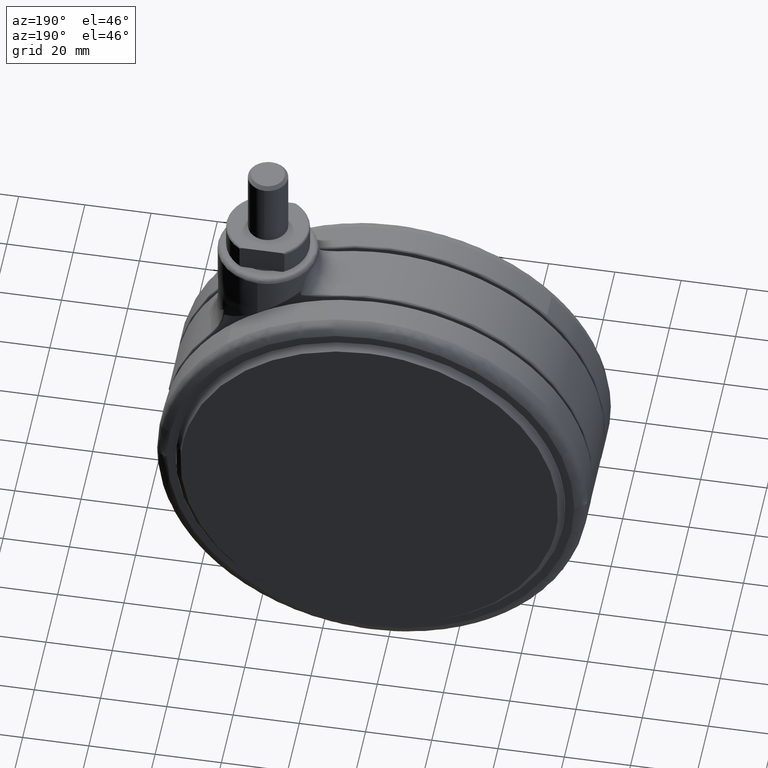
[diagram: clean part render]
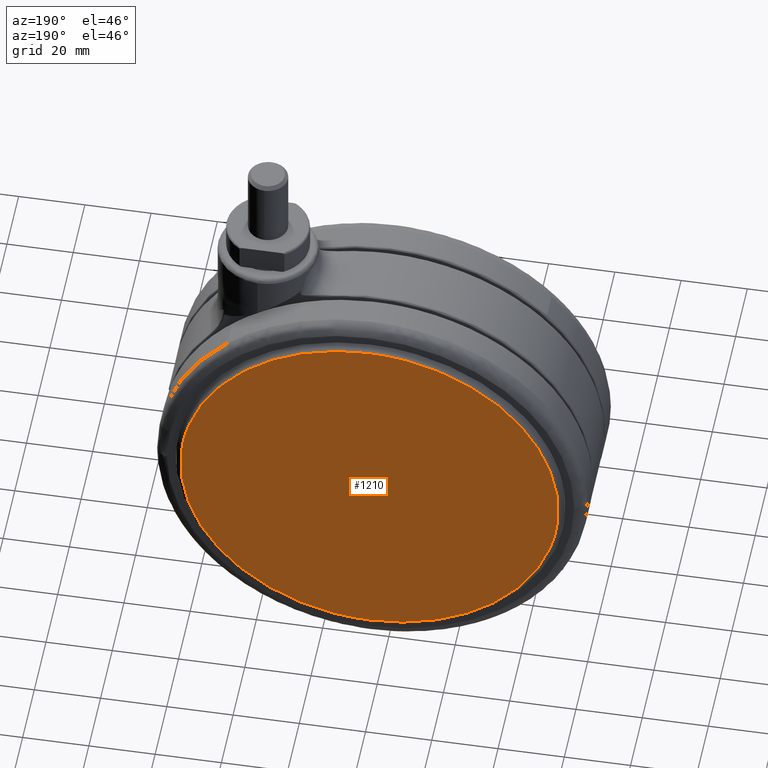
[diagram: same view with one face highlighted and labeled with its STEP entity id]
A machine part, auxiliary view. The second image highlights one B-rep face of the part: STEP entity #1210.
In plain terms, the highlighted face is a freeform B-spline surface patch.
Its self-contained STEP definition (entity closure, byte-faithful):
#1139=CARTESIAN_POINT('',(27.681095279403252,25.0,-8.805700220954233));
#1140=CARTESIAN_POINT('',(27.681095279403252,25.0,-134.194302836764110));
#1141=CARTESIAN_POINT('',(-97.681093240973070,25.0,-8.805700220954234));
#1142=CARTESIAN_POINT('',(-97.681093240973070,25.0,-134.194302836764110));
#1143=B_SPLINE_SURFACE_WITH_KNOTS('',1,1,((#1139,#1141),(#1140,#1142)),.UNSPECIFIED.,.F.,.F.,.U.,(2,2),(2,2),(0.0,125.388602615809900),(0.0,125.362188520376290),.UNSPECIFIED.);
#1144=CARTESIAN_POINT('',(-35.0,24.999999999999989,-14.500000000000110));
#1145=VERTEX_POINT('',#1144);
#1146=CARTESIAN_POINT('',(21.838057314976300,24.999999998533848,-67.206372084864341));
#1147=VERTEX_POINT('',#1146);
#1148=CARTESIAN_POINT('',(-35.0,24.999999999999989,-14.500000000000110));
#1149=CARTESIAN_POINT('',(17.856542794897290,24.999999999266922,-14.499999999995364));
#1150=CARTESIAN_POINT('',(21.838057314976307,24.999999998533852,-67.206372084864341));
#1158=(BOUNDED_CURVE()B_SPLINE_CURVE(2,(#1148,#1149,#1150),.UNSPECIFIED.,.F.,.U.)B_SPLINE_CURVE_WITH_KNOTS((3,3),(0.0,0.236870159262244),.UNSPECIFIED.)CURVE()GEOMETRIC_REPRESENTATION_ITEM()RATIONAL_B_SPLINE_CURVE((1.0,0.722489346451305,0.970850634527000))REPRESENTATION_ITEM(''));
#1159=EDGE_CURVE('',#1145,#1147,#1158,.T.);
#1160=ORIENTED_EDGE('',*,*,#1159,.T.);
#1161=CARTESIAN_POINT('',(-35.0,25.0,-128.500000000000000));
#1162=VERTEX_POINT('',#1161);
#1163=CARTESIAN_POINT('',(21.838057314976307,24.999999998533852,-67.206372084864341));
#1164=CARTESIAN_POINT('',(22.000000000121723,24.999999998559495,-69.350132047788236));
#1165=CARTESIAN_POINT('',(22.000000000119389,24.999999998587139,-71.499999999990976));
#1166=CARTESIAN_POINT('',(22.000000000057440,24.999999999320206,-128.499999999995650));
#1167=CARTESIAN_POINT('',(-35.0,25.0,-128.500000000000000));
#1175=(BOUNDED_CURVE()B_SPLINE_CURVE(2,(#1163,#1164,#1165,#1166,#1167),.UNSPECIFIED.,.F.,.U.)B_SPLINE_CURVE_WITH_KNOTS((3,2,3),(0.236870159262244,0.250000000000000,0.500000000000000),.UNSPECIFIED.)CURVE()GEOMETRIC_REPRESENTATION_ITEM()RATIONAL_B_SPLINE_CURVE((0.970850634527000,0.984617434735243,1.0,0.707106781186547,1.0))REPRESENTATION_ITEM(''));
#1176=EDGE_CURVE('',#1147,#1162,#1175,.T.);
#1177=ORIENTED_EDGE('',*,*,#1176,.T.);
#1178=CARTESIAN_POINT('',(-91.838057314976311,24.999999998533859,-75.793627915135659));
#1179=VERTEX_POINT('',#1178);
#1180=CARTESIAN_POINT('',(-35.0,25.0,-128.500000000000000));
#1181=CARTESIAN_POINT('',(-87.856542794897280,24.999999999266933,-128.500000000004690));
#1182=CARTESIAN_POINT('',(-91.838057314976311,24.999999998533859,-75.793627915135659));
#1190=(BOUNDED_CURVE()B_SPLINE_CURVE(2,(#1180,#1181,#1182),.UNSPECIFIED.,.F.,.U.)B_SPLINE_CURVE_WITH_KNOTS((3,3),(0.500000000000000,0.736870159262244),.UNSPECIFIED.)CURVE()GEOMETRIC_REPRESENTATION_ITEM()RATIONAL_B_SPLINE_CURVE((1.0,0.722489346451305,0.970850634527000))REPRESENTATION_ITEM(''));
#1191=EDGE_CURVE('',#1162,#1179,#1190,.T.);
#1192=ORIENTED_EDGE('',*,*,#1191,.T.);
#1193=CARTESIAN_POINT('',(-91.838057314976311,24.999999998533859,-75.793627915135659));
#1194=CARTESIAN_POINT('',(-92.000000000121730,24.999999998559499,-73.649867952211750));
#1195=CARTESIAN_POINT('',(-92.000000000119385,24.999999998587150,-71.500000000009010));
#1196=CARTESIAN_POINT('',(-92.000000000057440,24.999999999320206,-14.500000000004386));
#1197=CARTESIAN_POINT('',(-35.0,24.999999999999989,-14.500000000000110));
#1205=(BOUNDED_CURVE()B_SPLINE_CURVE(2,(#1193,#1194,#1195,#1196,#1197),.UNSPECIFIED.,.F.,.U.)B_SPLINE_CURVE_WITH_KNOTS((3,2,3),(0.736870159262244,0.750000000000000,1.0),.UNSPECIFIED.)CURVE()GEOMETRIC_REPRESENTATION_ITEM()RATIONAL_B_SPLINE_CURVE((0.970850634527000,0.984617434735243,1.0,0.707106781186547,1.0))REPRESENTATION_ITEM(''));
#1206=EDGE_CURVE('',#1179,#1145,#1205,.T.);
#1207=ORIENTED_EDGE('',*,*,#1206,.T.);
#1208=EDGE_LOOP('',(#1160,#1177,#1192,#1207));
#1209=FACE_OUTER_BOUND('',#1208,.T.);
#1210=ADVANCED_FACE('',(#1209),#1143,.T.);